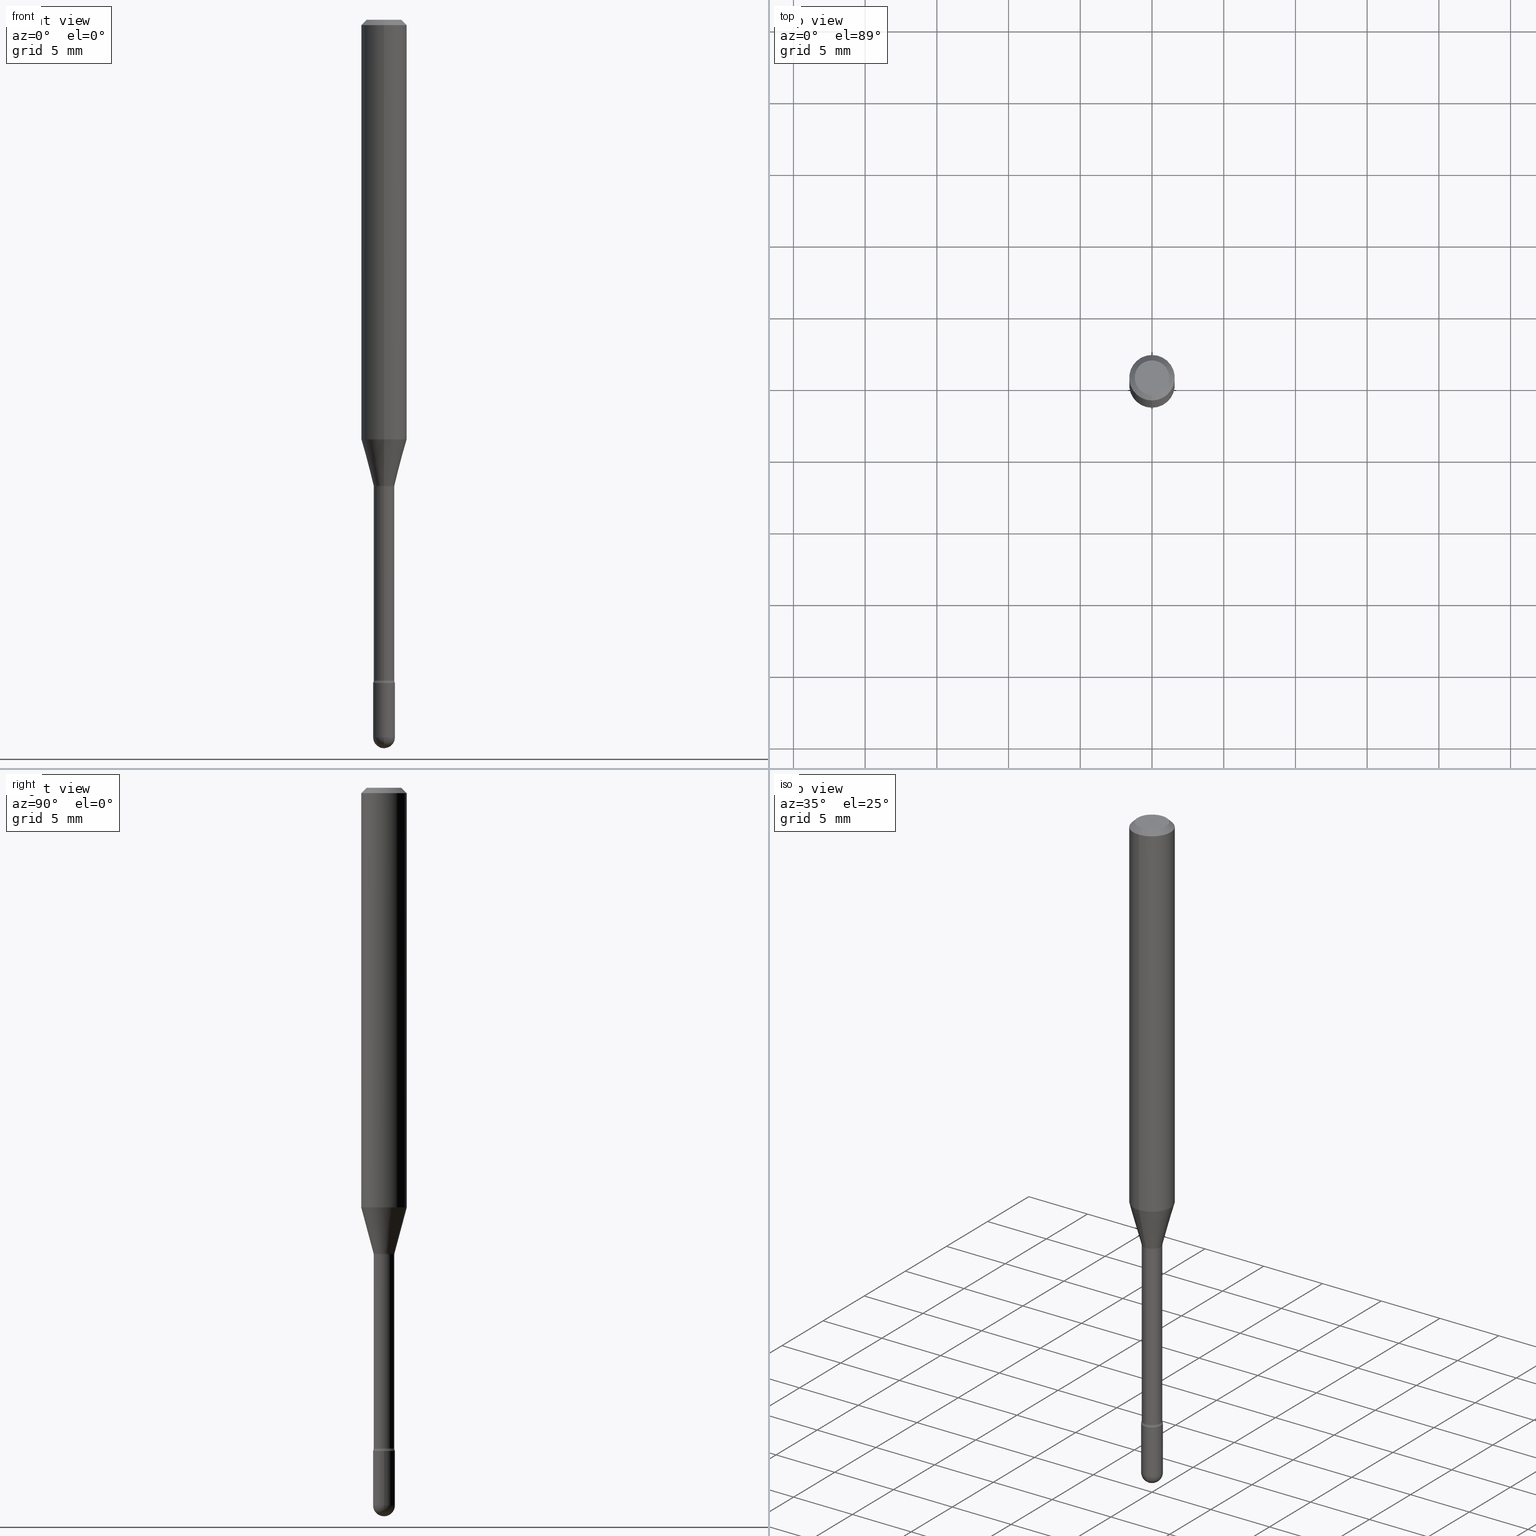
[diagram: canonical four-view strip — front | top / right | iso, engineering-drawing reading convention]
A machine part, canonical four-view strip (front | top / right | iso — engineering-drawing reading convention). The complete STEP part file that produces these views, byte-faithful:
ISO-10303-21;
HEADER;
FILE_DESCRIPTION (( 'STEP AP203' ),
    '1' );
FILE_NAME ('03736.STEP',
    '2024-04-09T20:17:51',
    ( '' ),
    ( '' ),
    'SwSTEP 2.0',
    'SolidWorks 2023',
    '' );
FILE_SCHEMA (( 'CONFIG_CONTROL_DESIGN' ));
ENDSEC;

DATA;
#1 = CARTESIAN_POINT ( 'NONE',  ( 3.840629472727447874E-16, 0.04749999999999999362, -2.485923956665947374E-16 ) ) ;
#2 = PERSON_AND_ORGANIZATION ( #566, #307 ) ;
#3 = CARTESIAN_POINT ( 'NONE',  ( -1.969195475107212711E-16, -0.02820000000000447149, -1.281974787463810994 ) ) ;
#4 = ORIENTED_EDGE ( 'NONE', *, *, #437, .T. ) ;
#5 = VECTOR ( 'NONE', #502, 39.37007874015748143 ) ;
#6 = LOCAL_TIME ( 16, 17, 51.00000000000000000, #274 ) ;
#7 = APPLICATION_PROTOCOL_DEFINITION ( 'international standard', 'config_control_design', 1994, #412 ) ;
#8 = DIRECTION ( 'NONE',  ( -1.000000000000000000, 6.982962677686265922E-15, -4.883557194083112340E-29 ) ) ;
#9 = CARTESIAN_POINT ( 'NONE',  ( 3.135014544081346677E-29, -4.476012254595563164E-15, -1.281974787463810994 ) ) ;
#10 = DIRECTION ( 'NONE',  ( -6.982962677686265922E-15, -1.000000000000000000, 3.491497881522818692E-15 ) ) ;
#11 = ADVANCED_FACE ( 'NONE', ( #523 ), #106, .F. ) ;
#12 = CARTESIAN_POINT ( 'NONE',  ( 4.450753227256948741E-29, -6.354496036694524637E-15, -1.820000000000000062 ) ) ;
#13 = CIRCLE ( 'NONE', #343, 0.01500000000000002720 ) ;
#14 = CARTESIAN_POINT ( 'NONE',  ( -0.03000000000000000583, 2.131628207280300972E-16, -1.475680527076471882E-30 ) ) ;
#15 = EDGE_LOOP ( 'NONE', ( #388, #277, #153, #135 ) ) ;
#16 = DIRECTION ( 'NONE',  ( -6.982962677686266711E-15, -1.000000000000000000, 3.491497881522819481E-15 ) ) ;
#17 = EDGE_LOOP ( 'NONE', ( #70, #458, #284, #471 ) ) ;
#18 = ADVANCED_BREP_SHAPE_REPRESENTATION ( '03736', ( #316, #319, #521 ), #317 ) ;
#19 = DIRECTION ( 'NONE',  ( -1.807323732225328562E-15, -0.2588190451025179639, 0.9659258262890690894 ) ) ;
#20 = ORIENTED_EDGE ( 'NONE', *, *, #321, .F. ) ;
#21 = DIRECTION ( 'NONE',  ( 1.000000000000000000, -6.982962677686265922E-15, 4.883557194083112340E-29 ) ) ;
#22 = CIRCLE ( 'NONE', #84, 0.02999999999999999889 ) ;
#23 = ORIENTED_EDGE ( 'NONE', *, *, #116, .F. ) ;
#24 = DIRECTION ( 'NONE',  ( -2.445457254493661418E-29, 3.491497881522819481E-15, 1.000000000000000000 ) ) ;
#25 = ORIENTED_EDGE ( 'NONE', *, *, #565, .T. ) ;
#26 = EDGE_CURVE ( 'NONE', #104, #322, #432, .T. ) ;
#27 = DIRECTION ( 'NONE',  ( -6.982962677686266711E-15, -1.000000000000000000, 0.000000000000000000 ) ) ;
#28 = ORIENTED_EDGE ( 'NONE', *, *, #532, .T. ) ;
#29 = CARTESIAN_POINT ( 'NONE',  ( 2.094888803306360922E-16, 0.02999999999999311551, -1.969999999999999973 ) ) ;
#30 = ORIENTED_EDGE ( 'NONE', *, *, #63, .T. ) ;
#31 = CIRCLE ( 'NONE', #121, 0.02820000000000008958 ) ;
#32 = AXIS2_PLACEMENT_3D ( 'NONE', #9, #220, #213 ) ;
#33 = ADVANCED_FACE ( 'NONE', ( #74 ), #120, .T. ) ;
#34 = CARTESIAN_POINT ( 'NONE',  ( 4.450753227256948741E-29, -6.354496036694524637E-15, -1.820000000000000062 ) ) ;
#35 = ORIENTED_EDGE ( 'NONE', *, *, #116, .T. ) ;
#36 = CLOSED_SHELL ( 'NONE', ( #187, #126, #33, #234, #354 ) ) ;
#37 = DIRECTION ( 'NONE',  ( -6.982962677686265133E-15, -1.000000000000000000, 3.491497881522818297E-15 ) ) ;
#38 = CC_DESIGN_PERSON_AND_ORGANIZATION_ASSIGNMENT ( #526, #89, ( #406 ) ) ;
#39 = ORIENTED_EDGE ( 'NONE', *, *, #45, .F. ) ;
#40 = DIRECTION ( 'NONE',  ( 1.000000000000000000, -7.105427357601001070E-15, 4.926315711131479445E-29 ) ) ;
#41 = ORIENTED_EDGE ( 'NONE', *, *, #399, .F. ) ;
#42 = AXIS2_PLACEMENT_3D ( 'NONE', #142, #87, #266 ) ;
#43 = PERSON_AND_ORGANIZATION_ROLE ( 'classification_officer' ) ;
#44 = CARTESIAN_POINT ( 'NONE',  ( -3.773273898774340269E-16, -0.04749999999999999362, 8.309990307807305803E-17 ) ) ;
#45 = EDGE_CURVE ( 'NONE', #384, #107, #211, .T. ) ;
#46 = CYLINDRICAL_SURFACE ( 'NONE', #262, 0.06250000000000000000 ) ;
#47 = EDGE_LOOP ( 'NONE', ( #30, #424, #155, #218, #241 ) ) ;
#48 = PERSON_AND_ORGANIZATION_ROLE ( 'creator' ) ;
#49 = DIRECTION ( 'NONE',  ( -2.445468806185136597E-29, 3.491481338843145583E-15, 1.000000000000000000 ) ) ;
#50 = CONICAL_SURFACE ( 'NONE', #379, 0.02871111260566397427, 0.2617993877991500740 ) ;
#51 = TOROIDAL_SURFACE ( 'NONE', #380, 0.04320000000000000229, 0.01500000000000003067 ) ;
#52 = COORDINATED_UNIVERSAL_TIME_OFFSET ( 5, 0, .BEHIND. ) ;
#53 = EDGE_CURVE ( 'NONE', #333, #104, #298, .T. ) ;
#54 = DIRECTION ( 'NONE',  ( -2.445468806185136597E-29, 3.491481338843145583E-15, 1.000000000000000000 ) ) ;
#55 = CYLINDRICAL_SURFACE ( 'NONE', #400, 0.03000000000000000583 ) ;
#56 = DATE_TIME_ROLE ( 'classification_date' ) ;
#57 = DIRECTION ( 'NONE',  ( 1.000000000000000000, -6.982962677686266711E-15, 0.000000000000000000 ) ) ;
#58 = CONICAL_SURFACE ( 'NONE', #280, 0.06250000000000000000, 0.7853981633974483900 ) ;
#59 = CC_DESIGN_APPROVAL ( #299, ( #131 ) ) ;
#60 = CARTESIAN_POINT ( 'NONE',  ( 4.817573548184719118E-29, -6.878218237520997007E-15, -1.969999999999999973 ) ) ;
#61 = ORIENTED_EDGE ( 'NONE', *, *, #348, .F. ) ;
#62 = ADVANCED_FACE ( 'NONE', ( #484 ), #93, .T. ) ;
#63 = EDGE_CURVE ( 'NONE', #473, #151, #500, .T. ) ;
#64 = CARTESIAN_POINT ( 'NONE',  ( -0.02999999999999999889, -6.403194316379730971E-15, -1.820000000000000062 ) ) ;
#65 = ORIENTED_EDGE ( 'NONE', *, *, #393, .T. ) ;
#66 = LINE ( 'NONE', #143, #287 ) ;
#67 = ORIENTED_EDGE ( 'NONE', *, *, #26, .T. ) ;
#68 = DIRECTION ( 'NONE',  ( -6.982962677686266711E-15, -1.000000000000000000, 0.000000000000000000 ) ) ;
#69 = EDGE_CURVE ( 'NONE', #76, #236, #22, .T. ) ;
#70 = ORIENTED_EDGE ( 'NONE', *, *, #504, .F. ) ;
#71 = CIRCLE ( 'NONE', #288, 0.06250000000000000000 ) ;
#72 = CARTESIAN_POINT ( 'NONE',  ( 3.135029353058570194E-29, -4.475991047297303565E-15, -1.281974787463810994 ) ) ;
#73 = VERTEX_POINT ( 'NONE', #44 ) ;
#74 = FACE_OUTER_BOUND ( 'NONE', #501, .T. ) ;
#75 = DIRECTION ( 'NONE',  ( -2.445457254493661418E-29, 3.491497881522819481E-15, 1.000000000000000000 ) ) ;
#76 = VERTEX_POINT ( 'NONE', #493 ) ;
#77 = VECTOR ( 'NONE', #445, 39.37007874015748143 ) ;
#78 = AXIS2_PLACEMENT_3D ( 'NONE', #423, #160, #37 ) ;
#79 = FACE_OUTER_BOUND ( 'NONE', #83, .T. ) ;
#80 = ORIENTED_EDGE ( 'NONE', *, *, #53, .T. ) ;
#81 = DIRECTION ( 'NONE',  ( 6.982962677686265922E-15, 1.000000000000000000, -3.491497881522819086E-15 ) ) ;
#82 = DIRECTION ( 'NONE',  ( 1.000000000000000000, -6.982962677686265922E-15, 4.876176775795935793E-29 ) ) ;
#83 = EDGE_LOOP ( 'NONE', ( #548, #392, #398, #291 ) ) ;
#84 = AXIS2_PLACEMENT_3D ( 'NONE', #12, #54, #225 ) ;
#85 = AXIS2_PLACEMENT_3D ( 'NONE', #294, #111, #475 ) ;
#86 = COORDINATED_UNIVERSAL_TIME_OFFSET ( 5, 0, .BEHIND. ) ;
#87 = DIRECTION ( 'NONE',  ( -2.445457254493661418E-29, 3.491497881522819481E-15, 1.000000000000000000 ) ) ;
#88 = VERTEX_POINT ( 'NONE', #528 ) ;
#89 = PERSON_AND_ORGANIZATION_ROLE ( 'creator' ) ;
#90 = CARTESIAN_POINT ( 'NONE',  ( 4.817573548184719118E-29, -6.878218237520997007E-15, -1.969999999999999973 ) ) ;
#91 = MECHANICAL_CONTEXT ( 'NONE', #412, 'mechanical' ) ;
#92 = DIRECTION ( 'NONE',  ( -2.445457254493661418E-29, 3.491497881522819481E-15, 1.000000000000000000 ) ) ;
#93 = CONICAL_SURFACE ( 'NONE', #447, 0.06250000000000000000, 0.7853981633974483900 ) ;
#94 = CC_DESIGN_PERSON_AND_ORGANIZATION_ASSIGNMENT ( #2, #43, ( #546 ) ) ;
#95 = DATE_AND_TIME ( #491, #391 ) ;
#96 = CARTESIAN_POINT ( 'NONE',  ( -1.169113584055446105E-44, 1.669184350826100908E-30, 4.780733988912460139E-16 ) ) ;
#97 = COORDINATED_UNIVERSAL_TIME_OFFSET ( 5, 0, .BEHIND. ) ;
#98 = CARTESIAN_POINT ( 'NONE',  ( 2.003730514843928186E-16, 0.02819999999999552032, -1.281974787463810994 ) ) ;
#99 = SPHERICAL_SURFACE ( 'NONE', #457, 0.02999999999999997807 ) ;
#100 = ADVANCED_FACE ( 'NONE', ( #318 ), #46, .T. ) ;
#101 = ORIENTED_EDGE ( 'NONE', *, *, #312, .T. ) ;
#102 = AXIS2_PLACEMENT_3D ( 'NONE', #206, #40, #124 ) ;
#103 = DIRECTION ( 'NONE',  ( -2.445468806185136877E-29, 3.491481338843145188E-15, 1.000000000000000000 ) ) ;
#104 = VERTEX_POINT ( 'NONE', #129 ) ;
#105 = LINE ( 'NONE', #14, #253 ) ;
#106 = TOROIDAL_SURFACE ( 'NONE', #407, 0.04320000000000006474, 0.01499999999999997689 ) ;
#107 = VERTEX_POINT ( 'NONE', #3 ) ;
#108 = DIRECTION ( 'NONE',  ( -7.105427357601001070E-15, -1.000000000000000000, 0.000000000000000000 ) ) ;
#109 = ORIENTED_EDGE ( 'NONE', *, *, #519, .F. ) ;
#110 = AXIS2_PLACEMENT_3D ( 'NONE', #499, #383, #426 ) ;
#111 = DIRECTION ( 'NONE',  ( -2.445457254493661418E-29, 3.491497881522819481E-15, 1.000000000000000000 ) ) ;
#112 = CC_DESIGN_APPROVAL ( #122, ( #546 ) ) ;
#113 = ORIENTED_EDGE ( 'NONE', *, *, #252, .T. ) ;
#114 = DIRECTION ( 'NONE',  ( -2.445468806185136597E-29, 3.491481338843145583E-15, 1.000000000000000000 ) ) ;
#115 = ORIENTED_EDGE ( 'NONE', *, *, #513, .T. ) ;
#116 = EDGE_CURVE ( 'NONE', #325, #333, #201, .T. ) ;
#117 = DIRECTION ( 'NONE',  ( -6.982962677686266711E-15, -1.000000000000000000, 3.491497881522819481E-15 ) ) ;
#118 = ORIENTED_EDGE ( 'NONE', *, *, #290, .F. ) ;
#119 = DIRECTION ( 'NONE',  ( -2.445457254493661418E-29, 3.491497881522819481E-15, 1.000000000000000000 ) ) ;
#120 = PLANE ( 'NONE',  #171 ) ;
#121 = AXIS2_PLACEMENT_3D ( 'NONE', #278, #371, #68 ) ;
#122 = APPROVAL ( #495, 'UNSPECIFIED' ) ;
#123 = AXIS2_PLACEMENT_3D ( 'NONE', #508, #256, #81 ) ;
#124 = DIRECTION ( 'NONE',  ( 7.105427357601001859E-15, 1.000000000000000000, 0.000000000000000000 ) ) ;
#125 = ORIENTED_EDGE ( 'NONE', *, *, #240, .F. ) ;
#126 = ADVANCED_FACE ( 'NONE', ( #357 ), #451, .T. ) ;
#127 = CALENDAR_DATE ( 2024, 9, 4 ) ;
#128 = DIRECTION ( 'NONE',  ( -6.982962677686265922E-15, -1.000000000000000000, 4.370956789862821150E-15 ) ) ;
#129 = CARTESIAN_POINT ( 'NONE',  ( 4.440892098500904235E-16, 0.06249999999999594075, -1.151990657300388188 ) ) ;
#130 = CIRCLE ( 'NONE', #166, 0.01499999999999997689 ) ;
#131 = PRODUCT_DEFINITION_FORMATION_WITH_SPECIFIED_SOURCE ( 'ANY', '', #232, .NOT_KNOWN. ) ;
#132 = CALENDAR_DATE ( 2024, 9, 4 ) ;
#133 = DIRECTION ( 'NONE',  ( -1.000000000000000000, 6.982962677686265922E-15, -4.883557194083112340E-29 ) ) ;
#134 = DIRECTION ( 'NONE',  ( -2.445457254493661418E-29, 3.491497881522819086E-15, 1.000000000000000000 ) ) ;
#135 = ORIENTED_EDGE ( 'NONE', *, *, #168, .F. ) ;
#136 = CC_DESIGN_PERSON_AND_ORGANIZATION_ASSIGNMENT ( #216, #227, ( #232 ) ) ;
#137 = APPROVAL_STATUS ( 'not_yet_approved' ) ;
#138 = DIRECTION ( 'NONE',  ( 6.982962677686265922E-15, 1.000000000000000000, 0.000000000000000000 ) ) ;
#139 = TOROIDAL_SURFACE ( 'NONE', #468, 0.04320000000000000229, 0.01500000000000003067 ) ;
#140 = CC_DESIGN_APPROVAL ( #429, ( #406 ) ) ;
#141 = APPROVAL_DATE_TIME ( #410, #122 ) ;
#142 = CARTESIAN_POINT ( 'NONE',  ( 3.125520580409640531E-29, -4.462457262380464341E-15, -1.278092501787273072 ) ) ;
#143 = CARTESIAN_POINT ( 'NONE',  ( -2.004886277601679343E-16, -0.02871111260566843598, -1.278092501787273072 ) ) ;
#144 = VERTEX_POINT ( 'NONE', #536 ) ;
#145 = DIRECTION ( 'NONE',  ( 1.000000000000000000, -6.982962677686266711E-15, 4.876176775795935793E-29 ) ) ;
#146 = VERTEX_POINT ( 'NONE', #1 ) ;
#147 = EDGE_CURVE ( 'NONE', #382, #473, #492, .T. ) ;
#148 = AXIS2_PLACEMENT_3D ( 'NONE', #490, #92, #271 ) ;
#149 = CIRCLE ( 'NONE', #413, 0.03000000000000000583 ) ;
#150 = FACE_OUTER_BOUND ( 'NONE', #17, .T. ) ;
#151 = VERTEX_POINT ( 'NONE', #268 ) ;
#152 = FACE_OUTER_BOUND ( 'NONE', #293, .T. ) ;
#153 = ORIENTED_EDGE ( 'NONE', *, *, #513, .F. ) ;
#154 = CARTESIAN_POINT ( 'NONE',  ( 3.125520580409640531E-29, -4.462457262380464341E-15, -1.278092501787273072 ) ) ;
#155 = ORIENTED_EDGE ( 'NONE', *, *, #69, .F. ) ;
#156 = AXIS2_PLACEMENT_3D ( 'NONE', #90, #214, #178 ) ;
#157 = DIRECTION ( 'NONE',  ( -2.445468806185136877E-29, 3.491481338843145188E-15, 1.000000000000000000 ) ) ;
#158 = CIRCLE ( 'NONE', #32, 0.02819999999999999243 ) ;
#159 = EDGE_LOOP ( 'NONE', ( #360, #503, #25, #542 ) ) ;
#160 = DIRECTION ( 'NONE',  ( -2.445457254493661418E-29, 3.491497881522819481E-15, 1.000000000000000000 ) ) ;
#161 = ADVANCED_FACE ( 'NONE', ( #175 ), #397, .T. ) ;
#162 = EDGE_LOOP ( 'NONE', ( #170, #23, #368, #339 ) ) ;
#163 = DIRECTION ( 'NONE',  ( -6.982962677686266711E-15, -1.000000000000000000, 3.491497881522819481E-15 ) ) ;
#164 = ORIENTED_EDGE ( 'NONE', *, *, #252, .F. ) ;
#165 = LINE ( 'NONE', #472, #167 ) ;
#166 = AXIS2_PLACEMENT_3D ( 'NONE', #448, #489, #306 ) ;
#167 = VECTOR ( 'NONE', #344, 39.37007874015748143 ) ;
#168 = EDGE_CURVE ( 'NONE', #322, #144, #530, .T. ) ;
#169 = DIRECTION ( 'NONE',  ( -4.851104656540964275E-15, -0.7071067811865500152, -0.7071067811865450192 ) ) ;
#170 = ORIENTED_EDGE ( 'NONE', *, *, #460, .F. ) ;
#171 = AXIS2_PLACEMENT_3D ( 'NONE', #301, #295, #82 ) ;
#172 = DIRECTION ( 'NONE',  ( 1.000000000000000000, -6.982962677686266711E-15, 4.876176775795935793E-29 ) ) ;
#173 = COORDINATED_UNIVERSAL_TIME_OFFSET ( 5, 0, .BEHIND. ) ;
#174 = EDGE_CURVE ( 'NONE', #325, #107, #13, .T. ) ;
#175 = FACE_OUTER_BOUND ( 'NONE', #15, .T. ) ;
#176 = CIRCLE ( 'NONE', #192, 0.02999999999999999889 ) ;
#177 = AXIS2_PLACEMENT_3D ( 'NONE', #381, #119, #27 ) ;
#178 = DIRECTION ( 'NONE',  ( 1.000000000000000000, -6.982962677686266711E-15, 0.000000000000000000 ) ) ;
#179 =( LENGTH_UNIT ( ) NAMED_UNIT ( * ) SI_UNIT ( $, .METRE. ) );
#180 = CARTESIAN_POINT ( 'NONE',  ( 3.125520580409640531E-29, -4.462457262380464341E-15, -1.278092501787273072 ) ) ;
#181 = APPROVAL_ROLE ( '' ) ;
#182 = CARTESIAN_POINT ( 'NONE',  ( -4.364351673553916201E-16, -0.06250000000000000000, 6.962920164864222561E-16 ) ) ;
#183 = CIRCLE ( 'NONE', #510, 0.06250000000000000000 ) ;
#184 = EDGE_CURVE ( 'NONE', #384, #476, #130, .T. ) ;
#185 = CARTESIAN_POINT ( 'NONE',  ( -4.364351673553636648E-16, -0.06250000000000405231, -1.151990657300387522 ) ) ;
#186 = ORIENTED_EDGE ( 'NONE', *, *, #69, .T. ) ;
#187 = ADVANCED_FACE ( 'NONE', ( #313 ), #55, .T. ) ;
#188 = DIRECTION ( 'NONE',  ( -1.000000000000000000, 7.105427357601001070E-15, -4.926315508542082329E-29 ) ) ;
#189 = EDGE_LOOP ( 'NONE', ( #35, #80, #279, #61 ) ) ;
#190 = CYLINDRICAL_SURFACE ( 'NONE', #520, 0.03000000000000000583 ) ;
#191 = ORIENTED_EDGE ( 'NONE', *, *, #555, .T. ) ;
#192 = AXIS2_PLACEMENT_3D ( 'NONE', #456, #374, #549 ) ;
#193 = LOCAL_TIME ( 16, 17, 51.00000000000000000, #97 ) ;
#194 = CARTESIAN_POINT ( 'NONE',  ( -1.969195475107089945E-16, -0.02820000000000642132, -1.812875394747777591 ) ) ;
#195 = ORIENTED_EDGE ( 'NONE', *, *, #480, .T. ) ;
#196 = DIRECTION ( 'NONE',  ( -1.000000000000000000, 6.982962677686265922E-15, -4.883557194083112340E-29 ) ) ;
#197 = ORIENTED_EDGE ( 'NONE', *, *, #255, .T. ) ;
#198 = EDGE_CURVE ( 'NONE', #322, #104, #243, .T. ) ;
#199 = DIRECTION ( 'NONE',  ( -2.445457254493661418E-29, 3.491497881522819481E-15, 1.000000000000000000 ) ) ;
#200 = ORIENTED_EDGE ( 'NONE', *, *, #219, .T. ) ;
#201 = CIRCLE ( 'NONE', #326, 0.02871111260566397427 ) ;
#202 = DIRECTION ( 'NONE',  ( -2.445457254493661418E-29, 3.491497881522819481E-15, 1.000000000000000000 ) ) ;
#203 = DIRECTION ( 'NONE',  ( 6.982962677686265922E-15, 1.000000000000000000, -3.483106191921935554E-15 ) ) ;
#204 = CARTESIAN_POINT ( 'NONE',  ( 3.668185881740512253E-31, -5.237246822284258483E-17, -0.01500000000000008271 ) ) ;
#205 = VERTEX_POINT ( 'NONE', #539 ) ;
#206 = CARTESIAN_POINT ( 'NONE',  ( 3.069544618483945552E-16, 0.04319999999999552670, -1.281974787463811216 ) ) ;
#207 = ORIENTED_EDGE ( 'NONE', *, *, #437, .F. ) ;
#208 = ADVANCED_FACE ( 'NONE', ( #228 ), #233, .T. ) ;
#209 = CYLINDRICAL_SURFACE ( 'NONE', #78, 0.02820000000000004101 ) ;
#210 = CIRCLE ( 'NONE', #110, 0.01499999999999997689 ) ;
#211 = LINE ( 'NONE', #254, #267 ) ;
#212 = CC_DESIGN_PERSON_AND_ORGANIZATION_ASSIGNMENT ( #265, #48, ( #131 ) ) ;
#213 = DIRECTION ( 'NONE',  ( -6.982962677686265133E-15, -1.000000000000000000, 0.000000000000000000 ) ) ;
#214 = DIRECTION ( 'NONE',  ( -2.445468806185136597E-29, 3.491481338843145583E-15, 1.000000000000000000 ) ) ;
#215 = ADVANCED_FACE ( 'NONE', ( #221 ), #442, .F. ) ;
#216 = PERSON_AND_ORGANIZATION ( #566, #307 ) ;
#217 = DIRECTION ( 'NONE',  ( -6.982962677686265922E-15, -1.000000000000000000, 0.000000000000000000 ) ) ;
#218 = ORIENTED_EDGE ( 'NONE', *, *, #532, .F. ) ;
#219 = EDGE_CURVE ( 'NONE', #73, #146, #544, .T. ) ;
#220 = DIRECTION ( 'NONE',  ( -2.445457254493661418E-29, 3.491497881522819481E-15, 1.000000000000000000 ) ) ;
#221 = FACE_OUTER_BOUND ( 'NONE', #375, .T. ) ;
#222 = CIRCLE ( 'NONE', #272, 0.02999999999999997807 ) ;
#223 = VECTOR ( 'NONE', #157, 39.37007874015748143 ) ;
#224 = DATE_AND_TIME ( #127, #402 ) ;
#225 = DIRECTION ( 'NONE',  ( 1.000000000000000000, -6.982962677686268288E-15, 0.000000000000000000 ) ) ;
#226 = ADVANCED_FACE ( 'NONE', ( #463 ), #50, .T. ) ;
#227 = PERSON_AND_ORGANIZATION_ROLE ( 'design_owner' ) ;
#228 = FACE_OUTER_BOUND ( 'NONE', #189, .T. ) ;
#229 = UNCERTAINTY_MEASURE_WITH_UNIT (LENGTH_MEASURE( 1.000000000000000082E-05 ), #346, 'distance_accuracy_value', 'NONE');
#230 = CALENDAR_DATE ( 2024, 9, 4 ) ;
#231 = CARTESIAN_POINT ( 'NONE',  ( 4.817573548184719118E-29, -6.878218237520997007E-15, -1.969999999999999973 ) ) ;
#232 = PRODUCT ( '03736', '03736', '', ( #91 ) ) ;
#233 = CONICAL_SURFACE ( 'NONE', #42, 0.02871111260566397427, 0.2617993877991500740 ) ;
#234 = ADVANCED_FACE ( 'NONE', ( #152 ), #99, .T. ) ;
#235 = CARTESIAN_POINT ( 'NONE',  ( 2.023468857260129839E-45, -2.889162522554755982E-31, -8.274624629426083968E-17 ) ) ;
#236 = VERTEX_POINT ( 'NONE', #64 ) ;
#237 = CARTESIAN_POINT ( 'NONE',  ( -2.004886277601679343E-16, -0.02871111260566843598, -1.278092501787273072 ) ) ;
#238 = ORIENTED_EDGE ( 'NONE', *, *, #26, .F. ) ;
#239 = CARTESIAN_POINT ( 'NONE',  ( 0.000000000000000000, 0.000000000000000000, 0.000000000000000000 ) ) ;
#240 = EDGE_CURVE ( 'NONE', #205, #464, #529, .T. ) ;
#241 = ORIENTED_EDGE ( 'NONE', *, *, #147, .T. ) ;
#242 = APPLICATION_CONTEXT ( 'configuration controlled 3d designs of mechanical parts and assemblies' ) ;
#243 = CIRCLE ( 'NONE', #553, 0.06250000000000000000 ) ;
#244 = VECTOR ( 'NONE', #169, 39.37007874015748143 ) ;
#245 = DIRECTION ( 'NONE',  ( -2.445468806185136597E-29, 3.491481338843145583E-15, 1.000000000000000000 ) ) ;
#246 = ORIENTED_EDGE ( 'NONE', *, *, #53, .F. ) ;
#247 = DIRECTION ( 'NONE',  ( -2.445457254493661418E-29, 3.491497881522819481E-15, 1.000000000000000000 ) ) ;
#248 = VERTEX_POINT ( 'NONE', #98 ) ;
#249 = ADVANCED_FACE ( 'NONE', ( #150 ), #58, .T. ) ;
#250 = CARTESIAN_POINT ( 'NONE',  ( 4.433330227356255357E-29, -6.329620610409766284E-15, -1.812875394747777591 ) ) ;
#251 = DIRECTION ( 'NONE',  ( 1.839019923739598738E-15, 0.2588190451025247363, 0.9659258262890673130 ) ) ;
#252 = EDGE_CURVE ( 'NONE', #422, #384, #31, .T. ) ;
#253 = VECTOR ( 'NONE', #103, 39.37007874015748143 ) ;
#254 = CARTESIAN_POINT ( 'NONE',  ( -1.969195475107529735E-16, -0.02820000000000004101, 5.765336391501896876E-16 ) ) ;
#255 = EDGE_CURVE ( 'NONE', #558, #476, #176, .T. ) ;
#256 = DIRECTION ( 'NONE',  ( 2.445457254493661418E-29, -3.491497881522819086E-15, -1.000000000000000000 ) ) ;
#257 = ORIENTED_EDGE ( 'NONE', *, *, #348, .T. ) ;
#258 = AXIS2_PLACEMENT_3D ( 'NONE', #431, #427, #128 ) ;
#259 = DIRECTION ( 'NONE',  ( -2.445457254493661418E-29, 3.491497881522819481E-15, 1.000000000000000000 ) ) ;
#260 = DIRECTION ( 'NONE',  ( 2.445457254493661418E-29, -3.491497881522819481E-15, -1.000000000000000000 ) ) ;
#261 = APPROVAL_DATE_TIME ( #224, #299 ) ;
#262 = AXIS2_PLACEMENT_3D ( 'NONE', #534, #404, #10 ) ;
#263 = DIRECTION ( 'NONE',  ( -6.982962677686265922E-15, -1.000000000000000000, 3.491497881522818692E-15 ) ) ;
#264 = LOCAL_TIME ( 16, 17, 51.00000000000000000, #173 ) ;
#265 = PERSON_AND_ORGANIZATION ( #566, #307 ) ;
#266 = DIRECTION ( 'NONE',  ( -6.982962677686265922E-15, -1.000000000000000000, 0.000000000000000000 ) ) ;
#267 = VECTOR ( 'NONE', #347, 39.37007874015748143 ) ;
#268 = CARTESIAN_POINT ( 'NONE',  ( -0.03000000000000000583, -6.403194316379730971E-15, -1.969999999999999973 ) ) ;
#269 = EDGE_CURVE ( 'NONE', #333, #325, #315, .T. ) ;
#270 = APPROVAL_STATUS ( 'not_yet_approved' ) ;
#271 = DIRECTION ( 'NONE',  ( -6.982962677686266711E-15, -1.000000000000000000, 3.491497881522819481E-15 ) ) ;
#272 = AXIS2_PLACEMENT_3D ( 'NONE', #60, #21, #323 ) ;
#273 = CC_DESIGN_SECURITY_CLASSIFICATION ( #546, ( #131 ) ) ;
#274 = COORDINATED_UNIVERSAL_TIME_OFFSET ( 5, 0, .BEHIND. ) ;
#275 = CARTESIAN_POINT ( 'NONE',  ( 4.817573548184719118E-29, -6.878218237520997007E-15, -1.969999999999999973 ) ) ;
#276 = DIRECTION ( 'NONE',  ( -2.445457254493661418E-29, 3.491497881522819481E-15, 1.000000000000000000 ) ) ;
#277 = ORIENTED_EDGE ( 'NONE', *, *, #321, .T. ) ;
#278 = CARTESIAN_POINT ( 'NONE',  ( 4.433309285579012941E-29, -6.329650600226710445E-15, -1.812875394747777591 ) ) ;
#279 = ORIENTED_EDGE ( 'NONE', *, *, #198, .F. ) ;
#280 = AXIS2_PLACEMENT_3D ( 'NONE', #421, #285, #332 ) ;
#281 = DIRECTION ( 'NONE',  ( -6.982962677686265922E-15, -1.000000000000000000, 0.000000000000000000 ) ) ;
#282 = ORIENTED_EDGE ( 'NONE', *, *, #45, .T. ) ;
#283 = DIRECTION ( 'NONE',  ( 4.937700262164548042E-15, 0.7071067811865451302, -0.7071067811865499042 ) ) ;
#284 = ORIENTED_EDGE ( 'NONE', *, *, #303, .T. ) ;
#285 = DIRECTION ( 'NONE',  ( 2.445457254493661418E-29, -3.491497881522819481E-15, -1.000000000000000000 ) ) ;
#286 = ORIENTED_EDGE ( 'NONE', *, *, #240, .T. ) ;
#287 = VECTOR ( 'NONE', #19, 39.37007874015748854 ) ;
#288 = AXIS2_PLACEMENT_3D ( 'NONE', #204, #199, #554 ) ;
#289 = FACE_OUTER_BOUND ( 'NONE', #162, .T. ) ;
#290 = EDGE_CURVE ( 'NONE', #151, #236, #105, .T. ) ;
#291 = ORIENTED_EDGE ( 'NONE', *, *, #474, .T. ) ;
#292 = CARTESIAN_POINT ( 'NONE',  ( 3.668185881740512253E-31, -5.237246822284258483E-17, -0.01500000000000008271 ) ) ;
#293 = EDGE_LOOP ( 'NONE', ( #125, #366, #419, #518 ) ) ;
#294 = CARTESIAN_POINT ( 'NONE',  ( -1.169113584055446105E-44, 1.669184350826100908E-30, 4.780733988912460139E-16 ) ) ;
#295 = DIRECTION ( 'NONE',  ( -2.438088387897960049E-29, 3.491481338843145188E-15, 1.000000000000000000 ) ) ;
#296 = DIRECTION ( 'NONE',  ( -6.982962677686265133E-15, -1.000000000000000000, 0.000000000000000000 ) ) ;
#297 = CIRCLE ( 'NONE', #361, 0.02999999999999999889 ) ;
#298 = LINE ( 'NONE', #525, #341 ) ;
#299 = APPROVAL ( #270, 'UNSPECIFIED' ) ;
#300 = FACE_OUTER_BOUND ( 'NONE', #415, .T. ) ;
#301 = CARTESIAN_POINT ( 'NONE',  ( 4.450753227256948741E-29, -6.354496036694524637E-15, -1.820000000000000062 ) ) ;
#302 = CARTESIAN_POINT ( 'NONE',  ( 2.131628207280743720E-16, 0.02999999999999362899, -1.820000000000000284 ) ) ;
#303 = EDGE_CURVE ( 'NONE', #146, #88, #547, .T. ) ;
#304 = CARTESIAN_POINT ( 'NONE',  ( 3.668185881740512253E-31, -5.237246822284258483E-17, -0.01500000000000008271 ) ) ;
#305 = AXIS2_PLACEMENT_3D ( 'NONE', #479, #436, #350 ) ;
#306 = DIRECTION ( 'NONE',  ( -6.982962677686266711E-15, -1.000000000000000000, 0.000000000000000000 ) ) ;
#307 = ORGANIZATION ( 'UNSPECIFIED', 'UNSPECIFIED', '' ) ;
#308 = SECURITY_CLASSIFICATION_LEVEL ( 'unclassified' ) ;
#309 = CARTESIAN_POINT ( 'NONE',  ( 0.000000000000000000, 0.000000000000000000, 0.000000000000000000 ) ) ;
#310 = DIRECTION ( 'NONE',  ( 1.000000000000000000, 0.000000000000000000, 0.000000000000000000 ) ) ;
#311 = DIRECTION ( 'NONE',  ( -6.982962677686265922E-15, -1.000000000000000000, 3.491497881522819086E-15 ) ) ;
#312 = EDGE_CURVE ( 'NONE', #464, #382, #438, .T. ) ;
#313 = FACE_OUTER_BOUND ( 'NONE', #47, .T. ) ;
#314 = AXIS2_PLACEMENT_3D ( 'NONE', #466, #245, #57 ) ;
#315 = CIRCLE ( 'NONE', #352, 0.02871111260566397427 ) ;
#316 = MANIFOLD_SOLID_BREP ( 'Body-Move/Copy2[1]', #36 ) ;
#317 =( GEOMETRIC_REPRESENTATION_CONTEXT ( 3 ) GLOBAL_UNCERTAINTY_ASSIGNED_CONTEXT ( ( #229 ) ) GLOBAL_UNIT_ASSIGNED_CONTEXT ( ( #346, #441, #535 ) ) REPRESENTATION_CONTEXT ( 'NONE', 'WORKASPACE' ) );
#318 = FACE_OUTER_BOUND ( 'NONE', #514, .T. ) ;
#319 = MANIFOLD_SOLID_BREP ( 'Body-Move/Copy2[2]', #356 ) ;
#320 = FACE_OUTER_BOUND ( 'NONE', #337, .T. ) ;
#321 = EDGE_CURVE ( 'NONE', #104, #88, #363, .T. ) ;
#322 = VERTEX_POINT ( 'NONE', #185 ) ;
#323 = DIRECTION ( 'NONE',  ( 6.982962677686265922E-15, 1.000000000000000000, 0.000000000000000000 ) ) ;
#324 = PRODUCT_DEFINITION_SHAPE ( 'NONE', 'NONE',  #406 ) ;
#325 = VERTEX_POINT ( 'NONE', #237 ) ;
#326 = AXIS2_PLACEMENT_3D ( 'NONE', #180, #440, #217 ) ;
#327 = AXIS2_PLACEMENT_3D ( 'NONE', #517, #202, #435 ) ;
#328 = DIRECTION ( 'NONE',  ( -6.982962677686265922E-15, -1.000000000000000000, 0.000000000000000000 ) ) ;
#329 = ORIENTED_EDGE ( 'NONE', *, *, #255, .F. ) ;
#330 = CARTESIAN_POINT ( 'NONE',  ( 3.125520580409640531E-29, -4.462457262380464341E-15, -1.278092501787273072 ) ) ;
#331 = ORIENTED_EDGE ( 'NONE', *, *, #474, .F. ) ;
#332 = DIRECTION ( 'NONE',  ( 6.982962677686265922E-15, 1.000000000000000000, -3.483106191921935554E-15 ) ) ;
#333 = VERTEX_POINT ( 'NONE', #540 ) ;
#334 = AXIS2_PLACEMENT_3D ( 'NONE', #401, #134, #311 ) ;
#335 = CIRCLE ( 'NONE', #177, 0.02820000000000008958 ) ;
#336 = CARTESIAN_POINT ( 'NONE',  ( 4.817573548184719118E-29, -6.878218237520997007E-15, -1.969999999999999973 ) ) ;
#337 = EDGE_LOOP ( 'NONE', ( #118, #191, #101, #28, #109 ) ) ;
#338 = FACE_OUTER_BOUND ( 'NONE', #467, .T. ) ;
#339 = ORIENTED_EDGE ( 'NONE', *, *, #425, .T. ) ;
#340 = CARTESIAN_POINT ( 'NONE',  ( -2.131628207279818041E-16, -0.03000000000000686839, -1.969999999999999973 ) ) ;
#341 = VECTOR ( 'NONE', #251, 39.37007874015748854 ) ;
#342 = ORIENTED_EDGE ( 'NONE', *, *, #373, .T. ) ;
#343 = AXIS2_PLACEMENT_3D ( 'NONE', #359, #133, #395 ) ;
#344 = DIRECTION ( 'NONE',  ( -2.445457254493661698E-29, 3.491497881522819086E-15, 1.000000000000000000 ) ) ;
#345 = ORIENTED_EDGE ( 'NONE', *, *, #519, .T. ) ;
#346 =( CONVERSION_BASED_UNIT ( 'INCH', #351 ) LENGTH_UNIT ( ) NAMED_UNIT ( #376 ) );
#347 = DIRECTION ( 'NONE',  ( -2.445457254493661698E-29, 3.491497881522819086E-15, 1.000000000000000000 ) ) ;
#348 = EDGE_CURVE ( 'NONE', #325, #322, #66, .T. ) ;
#349 = APPROVAL_ROLE ( '' ) ;
#350 = DIRECTION ( 'NONE',  ( 1.000000000000000000, -6.982962677686266711E-15, 0.000000000000000000 ) ) ;
#351 = LENGTH_MEASURE_WITH_UNIT ( LENGTH_MEASURE( 0.02539999999999999897 ), #179 );
#352 = AXIS2_PLACEMENT_3D ( 'NONE', #154, #276, #328 ) ;
#353 = DIRECTION ( 'NONE',  ( -2.445457254493661418E-29, 3.491497881522819481E-15, 1.000000000000000000 ) ) ;
#354 = ADVANCED_FACE ( 'NONE', ( #320 ), #190, .T. ) ;
#355 = DIRECTION ( 'NONE',  ( -6.982962677686265922E-15, -1.000000000000000000, 4.370956789862821150E-15 ) ) ;
#356 = CLOSED_SHELL ( 'NONE', ( #385, #452, #11, #62, #161, #208, #226, #100, #249, #496, #215, #455, #527, #531 ) ) ;
#357 = FACE_OUTER_BOUND ( 'NONE', #541, .T. ) ;
#358 = DATE_AND_TIME ( #488, #264 ) ;
#359 = CARTESIAN_POINT ( 'NONE',  ( -3.016639876760153063E-16, -0.04320000000000447093, -1.281974787463810772 ) ) ;
#360 = ORIENTED_EDGE ( 'NONE', *, *, #269, .F. ) ;
#361 = AXIS2_PLACEMENT_3D ( 'NONE', #34, #433, #512 ) ;
#362 = EDGE_CURVE ( 'NONE', #205, #473, #222, .T. ) ;
#363 = LINE ( 'NONE', #411, #5 ) ;
#364 = ORIENTED_EDGE ( 'NONE', *, *, #303, .F. ) ;
#365 = FACE_OUTER_BOUND ( 'NONE', #159, .T. ) ;
#366 = ORIENTED_EDGE ( 'NONE', *, *, #362, .T. ) ;
#367 = CARTESIAN_POINT ( 'NONE',  ( 3.135029353058570194E-29, -4.475991047297303565E-15, -1.281974787463810994 ) ) ;
#368 = ORIENTED_EDGE ( 'NONE', *, *, #174, .T. ) ;
#369 = AXIS2_PLACEMENT_3D ( 'NONE', #275, #8, #138 ) ;
#370 = CIRCLE ( 'NONE', #449, 0.02819999999999999243 ) ;
#371 = DIRECTION ( 'NONE',  ( -2.445457254493661418E-29, 3.491497881522819481E-15, 1.000000000000000000 ) ) ;
#372 = ORIENTED_EDGE ( 'NONE', *, *, #168, .T. ) ;
#373 = EDGE_CURVE ( 'NONE', #146, #73, #389, .T. ) ;
#374 = DIRECTION ( 'NONE',  ( -2.445457254493661418E-29, 3.491497881522819481E-15, 1.000000000000000000 ) ) ;
#375 = EDGE_LOOP ( 'NONE', ( #331, #329 ) ) ;
#376 = DIMENSIONAL_EXPONENTS ( 1.000000000000000000, 0.000000000000000000, 0.000000000000000000, 0.000000000000000000, 0.000000000000000000, 0.000000000000000000, 0.000000000000000000 ) ;
#377 = DIRECTION ( 'NONE',  ( -6.982962677686266711E-15, -1.000000000000000000, 3.491497881522819481E-15 ) ) ;
#378 = DIRECTION ( 'NONE',  ( -2.445457254493661418E-29, 3.491497881522819481E-15, 1.000000000000000000 ) ) ;
#379 = AXIS2_PLACEMENT_3D ( 'NONE', #330, #24, #281 ) ;
#380 = AXIS2_PLACEMENT_3D ( 'NONE', #72, #247, #377 ) ;
#381 = CARTESIAN_POINT ( 'NONE',  ( 4.433309285579012941E-29, -6.329650600226710445E-15, -1.812875394747777591 ) ) ;
#382 = VERTEX_POINT ( 'NONE', #461 ) ;
#383 = DIRECTION ( 'NONE',  ( 1.000000000000000000, -7.105427357601001070E-15, 4.926315711131479445E-29 ) ) ;
#384 = VERTEX_POINT ( 'NONE', #194 ) ;
#385 = ADVANCED_FACE ( 'NONE', ( #365 ), #139, .F. ) ;
#386 = CARTESIAN_POINT ( 'NONE',  ( -2.094888803305433271E-16, -0.03000000000000633063, -1.819999999999999618 ) ) ;
#387 = PRODUCT_RELATED_PRODUCT_CATEGORY ( 'detail', '', ( #232 ) ) ;
#388 = ORIENTED_EDGE ( 'NONE', *, *, #198, .T. ) ;
#389 = CIRCLE ( 'NONE', #538, 0.04749999999999999362 ) ;
#390 = CARTESIAN_POINT ( 'NONE',  ( -4.287811248607203282E-16, -0.06250000000000005551, -0.01499999999999986587 ) ) ;
#391 = LOCAL_TIME ( 16, 17, 51.00000000000000000, #86 ) ;
#392 = ORIENTED_EDGE ( 'NONE', *, *, #480, .F. ) ;
#393 = EDGE_CURVE ( 'NONE', #422, #558, #210, .T. ) ;
#394 = DIRECTION ( 'NONE',  ( 1.000000000000000000, -6.982962677686266711E-15, 0.000000000000000000 ) ) ;
#395 = DIRECTION ( 'NONE',  ( -6.982962677686267499E-15, -1.000000000000000000, 0.000000000000000000 ) ) ;
#396 = APPROVAL_DATE_TIME ( #95, #429 ) ;
#397 = CYLINDRICAL_SURFACE ( 'NONE', #420, 0.06250000000000000000 ) ;
#398 = ORIENTED_EDGE ( 'NONE', *, *, #184, .T. ) ;
#399 = EDGE_CURVE ( 'NONE', #88, #144, #183, .T. ) ;
#400 = AXIS2_PLACEMENT_3D ( 'NONE', #309, #49, #172 ) ;
#401 = CARTESIAN_POINT ( 'NONE',  ( 2.094888803306324684E-16, 0.02999999999999364286, -1.820000000000000062 ) ) ;
#402 = LOCAL_TIME ( 16, 17, 51.00000000000000000, #52 ) ;
#403 = PERSON_AND_ORGANIZATION ( #566, #307 ) ;
#404 = DIRECTION ( 'NONE',  ( -2.445457254493661418E-29, 3.491497881522819481E-15, 1.000000000000000000 ) ) ;
#405 = CC_DESIGN_DATE_AND_TIME_ASSIGNMENT ( #450, #446, ( #406 ) ) ;
#406 = PRODUCT_DEFINITION ( 'UNKNOWN', '', #131, #497 ) ;
#407 = AXIS2_PLACEMENT_3D ( 'NONE', #556, #378, #482 ) ;
#408 = APPROVAL_ROLE ( '' ) ;
#409 = CARTESIAN_POINT ( 'NONE',  ( 2.817143910004154640E-29, -4.022172939498384553E-15, -1.151990657300387744 ) ) ;
#410 = DATE_AND_TIME ( #230, #193 ) ;
#411 = CARTESIAN_POINT ( 'NONE',  ( 4.440892098500625669E-16, 0.06250000000000000000, 2.598547812960698703E-16 ) ) ;
#412 = APPLICATION_CONTEXT ( 'configuration controlled 3d designs of mechanical parts and assemblies' ) ;
#413 = AXIS2_PLACEMENT_3D ( 'NONE', #336, #114, #394 ) ;
#414 = DIRECTION ( 'NONE',  ( -2.445457254493661418E-29, 3.491497881522819481E-15, 1.000000000000000000 ) ) ;
#415 = EDGE_LOOP ( 'NONE', ( #342, #200 ) ) ;
#416 = DIRECTION ( 'NONE',  ( 6.982962677686265922E-15, 1.000000000000000000, 0.000000000000000000 ) ) ;
#417 = EDGE_LOOP ( 'NONE', ( #195, #4, #545, #39 ) ) ;
#418 = DIRECTION ( 'NONE',  ( -2.445468806185136597E-29, 3.491481338843145583E-15, 1.000000000000000000 ) ) ;
#419 = ORIENTED_EDGE ( 'NONE', *, *, #147, .F. ) ;
#420 = AXIS2_PLACEMENT_3D ( 'NONE', #96, #353, #263 ) ;
#421 = CARTESIAN_POINT ( 'NONE',  ( 3.668185881740512253E-31, -5.237246822284258483E-17, -0.01500000000000008271 ) ) ;
#422 = VERTEX_POINT ( 'NONE', #559 ) ;
#423 = CARTESIAN_POINT ( 'NONE',  ( -1.169113584055446105E-44, 1.669184350826100908E-30, 4.780733988912460139E-16 ) ) ;
#424 = ORIENTED_EDGE ( 'NONE', *, *, #290, .T. ) ;
#425 = EDGE_CURVE ( 'NONE', #107, #248, #370, .T. ) ;
#426 = DIRECTION ( 'NONE',  ( 7.105427357601001859E-15, 1.000000000000000000, 0.000000000000000000 ) ) ;
#427 = DIRECTION ( 'NONE',  ( -2.445457254493661418E-29, 3.491497881522819481E-15, 1.000000000000000000 ) ) ;
#428 = APPROVAL_PERSON_ORGANIZATION ( #483, #299, #349 ) ;
#429 = APPROVAL ( #137, 'UNSPECIFIED' ) ;
#430 = LINE ( 'NONE', #390, #244 ) ;
#431 = CARTESIAN_POINT ( 'NONE',  ( 2.817143910004154640E-29, -4.022172939498384553E-15, -1.151990657300387744 ) ) ;
#432 = CIRCLE ( 'NONE', #258, 0.06250000000000000000 ) ;
#433 = DIRECTION ( 'NONE',  ( -2.445468806185136597E-29, 3.491481338843145583E-15, 1.000000000000000000 ) ) ;
#434 = ORIENTED_EDGE ( 'NONE', *, *, #565, .F. ) ;
#435 = DIRECTION ( 'NONE',  ( -6.982962677686265922E-15, -1.000000000000000000, 0.000000000000000000 ) ) ;
#436 = DIRECTION ( 'NONE',  ( -2.445468806185136597E-29, 3.491481338843145583E-15, 1.000000000000000000 ) ) ;
#437 = EDGE_CURVE ( 'NONE', #422, #248, #165, .T. ) ;
#438 = CIRCLE ( 'NONE', #314, 0.03000000000000000583 ) ;
#439 = PERSON_AND_ORGANIZATION_ROLE ( 'design_supplier' ) ;
#440 = DIRECTION ( 'NONE',  ( -2.445457254493661418E-29, 3.491497881522819481E-15, 1.000000000000000000 ) ) ;
#441 =( NAMED_UNIT ( * ) PLANE_ANGLE_UNIT ( ) SI_UNIT ( $, .RADIAN. ) );
#442 = PLANE ( 'NONE',  #334 ) ;
#443 = EDGE_LOOP ( 'NONE', ( #462, #564, #115, #364 ) ) ;
#444 = PERSON_AND_ORGANIZATION ( #566, #307 ) ;
#445 = DIRECTION ( 'NONE',  ( -2.445457254493661698E-29, 3.491497881522819086E-15, 1.000000000000000000 ) ) ;
#446 = DATE_TIME_ROLE ( 'creation_date' ) ;
#447 = AXIS2_PLACEMENT_3D ( 'NONE', #304, #260, #203 ) ;
#448 = CARTESIAN_POINT ( 'NONE',  ( -3.016639876760028324E-16, -0.04320000000000639301, -1.812875394747777147 ) ) ;
#449 = AXIS2_PLACEMENT_3D ( 'NONE', #481, #259, #296 ) ;
#450 = DATE_AND_TIME ( #132, #6 ) ;
#451 = SPHERICAL_SURFACE ( 'NONE', #369, 0.02999999999999997807 ) ;
#452 = ADVANCED_FACE ( 'NONE', ( #557 ), #209, .T. ) ;
#453 = SHAPE_DEFINITION_REPRESENTATION ( #324, #18 ) ;
#454 = CARTESIAN_POINT ( 'NONE',  ( 4.364351673553919652E-16, 0.06249999999999995143, -0.01500000000000030129 ) ) ;
#455 = ADVANCED_FACE ( 'NONE', ( #79 ), #477, .F. ) ;
#456 = CARTESIAN_POINT ( 'NONE',  ( 4.450732203178463870E-29, -6.354526144371531320E-15, -1.820000000000000062 ) ) ;
#457 = AXIS2_PLACEMENT_3D ( 'NONE', #506, #196, #416 ) ;
#458 = ORIENTED_EDGE ( 'NONE', *, *, #373, .F. ) ;
#459 = CIRCLE ( 'NONE', #327, 0.02999999999999999889 ) ;
#460 = EDGE_CURVE ( 'NONE', #333, #248, #511, .T. ) ;
#461 = CARTESIAN_POINT ( 'NONE',  ( 0.03000000000000000583, -6.825846017438348744E-15, -1.969999999999999973 ) ) ;
#462 = ORIENTED_EDGE ( 'NONE', *, *, #219, .F. ) ;
#463 = FACE_OUTER_BOUND ( 'NONE', #552, .T. ) ;
#464 = VERTEX_POINT ( 'NONE', #340 ) ;
#465 = CC_DESIGN_DATE_AND_TIME_ASSIGNMENT ( #358, #56, ( #546 ) ) ;
#466 = CARTESIAN_POINT ( 'NONE',  ( 4.817573548184719118E-29, -6.878218237520997007E-15, -1.969999999999999973 ) ) ;
#467 = EDGE_LOOP ( 'NONE', ( #207, #113, #282, #434 ) ) ;
#468 = AXIS2_PLACEMENT_3D ( 'NONE', #367, #543, #117 ) ;
#469 = APPROVAL_PERSON_ORGANIZATION ( #537, #122, #181 ) ;
#470 = LINE ( 'NONE', #551, #223 ) ;
#471 = ORIENTED_EDGE ( 'NONE', *, *, #399, .T. ) ;
#472 = CARTESIAN_POINT ( 'NONE',  ( 2.003730514843484945E-16, 0.02820000000000004101, 3.796131586323024389E-16 ) ) ;
#473 = VERTEX_POINT ( 'NONE', #29 ) ;
#474 = EDGE_CURVE ( 'NONE', #476, #558, #459, .T. ) ;
#475 = DIRECTION ( 'NONE',  ( -6.982962677686265133E-15, -1.000000000000000000, 3.491497881522818297E-15 ) ) ;
#476 = VERTEX_POINT ( 'NONE', #386 ) ;
#477 = TOROIDAL_SURFACE ( 'NONE', #494, 0.04320000000000006474, 0.01499999999999997689 ) ;
#478 = DIRECTION ( 'NONE',  ( -6.982962677686265922E-15, -1.000000000000000000, 3.483106191921935554E-15 ) ) ;
#479 = CARTESIAN_POINT ( 'NONE',  ( 4.817573548184719118E-29, -6.878218237520997007E-15, -1.969999999999999973 ) ) ;
#480 = EDGE_CURVE ( 'NONE', #384, #422, #335, .T. ) ;
#481 = CARTESIAN_POINT ( 'NONE',  ( 3.135014544081346677E-29, -4.476012254595563164E-15, -1.281974787463810994 ) ) ;
#482 = DIRECTION ( 'NONE',  ( -6.982962677686266711E-15, -1.000000000000000000, 3.491497881522819481E-15 ) ) ;
#483 = PERSON_AND_ORGANIZATION ( #566, #307 ) ;
#484 = FACE_OUTER_BOUND ( 'NONE', #443, .T. ) ;
#485 = APPROVAL_PERSON_ORGANIZATION ( #444, #429, #408 ) ;
#486 = DIRECTION ( 'NONE',  ( 0.000000000000000000, 0.000000000000000000, 1.000000000000000000 ) ) ;
#487 = DIRECTION ( 'NONE',  ( -2.445457254493661418E-29, 3.491497881522819481E-15, 1.000000000000000000 ) ) ;
#488 = CALENDAR_DATE ( 2024, 9, 4 ) ;
#489 = DIRECTION ( 'NONE',  ( -1.000000000000000000, 6.982962677686265922E-15, -4.883557194083112340E-29 ) ) ;
#490 = CARTESIAN_POINT ( 'NONE',  ( 2.023468857260129839E-45, -2.889162522554755982E-31, -8.274624629426083968E-17 ) ) ;
#491 = CALENDAR_DATE ( 2024, 9, 4 ) ;
#492 = CIRCLE ( 'NONE', #156, 0.03000000000000000583 ) ;
#493 = CARTESIAN_POINT ( 'NONE',  ( 0.02999999999999999889, -6.563984917025112954E-15, -1.820000000000000062 ) ) ;
#494 = AXIS2_PLACEMENT_3D ( 'NONE', #250, #522, #163 ) ;
#495 = APPROVAL_STATUS ( 'not_yet_approved' ) ;
#496 = ADVANCED_FACE ( 'NONE', ( #300 ), #563, .F. ) ;
#497 = DESIGN_CONTEXT ( 'detailed design', #242, 'design' ) ;
#498 = ORIENTED_EDGE ( 'NONE', *, *, #555, .F. ) ;
#499 = CARTESIAN_POINT ( 'NONE',  ( 3.069544618484080644E-16, 0.04319999999999374340, -1.812875394747777813 ) ) ;
#500 = CIRCLE ( 'NONE', #305, 0.03000000000000000583 ) ;
#501 = EDGE_LOOP ( 'NONE', ( #186, #345 ) ) ;
#502 = DIRECTION ( 'NONE',  ( -2.445457254493661698E-29, 3.491497881522819086E-15, 1.000000000000000000 ) ) ;
#503 = ORIENTED_EDGE ( 'NONE', *, *, #460, .T. ) ;
#504 = EDGE_CURVE ( 'NONE', #73, #144, #430, .T. ) ;
#505 = CC_DESIGN_PERSON_AND_ORGANIZATION_ASSIGNMENT ( #403, #439, ( #131 ) ) ;
#506 = CARTESIAN_POINT ( 'NONE',  ( 4.817573548184719118E-29, -6.878218237520997007E-15, -1.969999999999999973 ) ) ;
#507 = ORIENTED_EDGE ( 'NONE', *, *, #184, .F. ) ;
#508 = CARTESIAN_POINT ( 'NONE',  ( 3.316907271900976096E-16, 0.04749999999999999362, 3.181742692615867708E-17 ) ) ;
#509 = ORIENTED_EDGE ( 'NONE', *, *, #63, .F. ) ;
#510 = AXIS2_PLACEMENT_3D ( 'NONE', #292, #75, #478 ) ;
#511 = CIRCLE ( 'NONE', #102, 0.01500000000000002720 ) ;
#512 = DIRECTION ( 'NONE',  ( 1.000000000000000000, -6.982962677686268288E-15, 0.000000000000000000 ) ) ;
#513 = EDGE_CURVE ( 'NONE', #144, #88, #71, .T. ) ;
#514 = EDGE_LOOP ( 'NONE', ( #20, #67, #372, #41 ) ) ;
#515 = CYLINDRICAL_SURFACE ( 'NONE', #85, 0.02820000000000004101 ) ;
#516 = EDGE_LOOP ( 'NONE', ( #164, #65, #197, #507 ) ) ;
#517 = CARTESIAN_POINT ( 'NONE',  ( 4.450732203178463870E-29, -6.354526144371531320E-15, -1.820000000000000062 ) ) ;
#518 = ORIENTED_EDGE ( 'NONE', *, *, #312, .F. ) ;
#519 = EDGE_CURVE ( 'NONE', #236, #76, #297, .T. ) ;
#520 = AXIS2_PLACEMENT_3D ( 'NONE', #239, #418, #145 ) ;
#521 = AXIS2_PLACEMENT_3D ( 'NONE', #524, #486, #310 ) ;
#522 = DIRECTION ( 'NONE',  ( -2.445457254493661418E-29, 3.491497881522819481E-15, 1.000000000000000000 ) ) ;
#523 = FACE_OUTER_BOUND ( 'NONE', #516, .T. ) ;
#524 = CARTESIAN_POINT ( 'NONE',  ( 0.000000000000000000, 0.000000000000000000, 0.000000000000000000 ) ) ;
#525 = CARTESIAN_POINT ( 'NONE',  ( 2.040047249754790466E-16, 0.02871111260565951603, -1.278092501787273072 ) ) ;
#526 = PERSON_AND_ORGANIZATION ( #566, #307 ) ;
#527 = ADVANCED_FACE ( 'NONE', ( #338 ), #515, .T. ) ;
#528 = CARTESIAN_POINT ( 'NONE',  ( 4.440892098500909166E-16, 0.06249999999999995143, -0.01500000000000030129 ) ) ;
#529 = CIRCLE ( 'NONE', #562, 0.02999999999999997807 ) ;
#530 = LINE ( 'NONE', #182, #77 ) ;
#531 = ADVANCED_FACE ( 'NONE', ( #289 ), #51, .F. ) ;
#532 = EDGE_CURVE ( 'NONE', #382, #76, #470, .T. ) ;
#533 = APPLICATION_PROTOCOL_DEFINITION ( 'international standard', 'config_control_design', 1994, #242 ) ;
#534 = CARTESIAN_POINT ( 'NONE',  ( -1.169113584055446105E-44, 1.669184350826100908E-30, 4.780733988912460139E-16 ) ) ;
#535 =( NAMED_UNIT ( * ) SI_UNIT ( $, .STERADIAN. ) SOLID_ANGLE_UNIT ( ) );
#536 = CARTESIAN_POINT ( 'NONE',  ( -4.364351673553912750E-16, -0.06250000000000005551, -0.01499999999999986587 ) ) ;
#537 = PERSON_AND_ORGANIZATION ( #566, #307 ) ;
#538 = AXIS2_PLACEMENT_3D ( 'NONE', #235, #414, #16 ) ;
#539 = CARTESIAN_POINT ( 'NONE',  ( 4.892220361804041996E-29, -6.981125707487570201E-15, -2.000000000000000000 ) ) ;
#540 = CARTESIAN_POINT ( 'NONE',  ( 3.240469674127849323E-16, 0.02871111260565951603, -1.278092501787273072 ) ) ;
#541 = EDGE_LOOP ( 'NONE', ( #560, #286, #498, #509 ) ) ;
#542 = ORIENTED_EDGE ( 'NONE', *, *, #174, .F. ) ;
#543 = DIRECTION ( 'NONE',  ( -2.445457254493661418E-29, 3.491497881522819481E-15, 1.000000000000000000 ) ) ;
#544 = CIRCLE ( 'NONE', #148, 0.04749999999999999362 ) ;
#545 = ORIENTED_EDGE ( 'NONE', *, *, #425, .F. ) ;
#546 = SECURITY_CLASSIFICATION ( '', '', #308 ) ;
#547 = LINE ( 'NONE', #454, #561 ) ;
#548 = ORIENTED_EDGE ( 'NONE', *, *, #393, .F. ) ;
#549 = DIRECTION ( 'NONE',  ( -6.982962677686265922E-15, -1.000000000000000000, 0.000000000000000000 ) ) ;
#550 = ORIENTED_EDGE ( 'NONE', *, *, #269, .T. ) ;
#551 = CARTESIAN_POINT ( 'NONE',  ( 0.03000000000000000583, -2.094888803305880457E-16, 1.462853032738781053E-30 ) ) ;
#552 = EDGE_LOOP ( 'NONE', ( #246, #550, #257, #238 ) ) ;
#553 = AXIS2_PLACEMENT_3D ( 'NONE', #409, #487, #355 ) ;
#554 = DIRECTION ( 'NONE',  ( -6.982962677686265922E-15, -1.000000000000000000, 3.483106191921935554E-15 ) ) ;
#555 = EDGE_CURVE ( 'NONE', #151, #464, #149, .T. ) ;
#556 = CARTESIAN_POINT ( 'NONE',  ( 4.433330227356255357E-29, -6.329620610409766284E-15, -1.812875394747777591 ) ) ;
#557 = FACE_OUTER_BOUND ( 'NONE', #417, .T. ) ;
#558 = VERTEX_POINT ( 'NONE', #302 ) ;
#559 = CARTESIAN_POINT ( 'NONE',  ( 2.067679361062337555E-16, 0.02819999999999376131, -1.812875394747777591 ) ) ;
#560 = ORIENTED_EDGE ( 'NONE', *, *, #362, .F. ) ;
#561 = VECTOR ( 'NONE', #283, 39.37007874015748143 ) ;
#562 = AXIS2_PLACEMENT_3D ( 'NONE', #231, #188, #108 ) ;
#563 = PLANE ( 'NONE',  #123 ) ;
#564 = ORIENTED_EDGE ( 'NONE', *, *, #504, .T. ) ;
#565 = EDGE_CURVE ( 'NONE', #248, #107, #158, .T. ) ;
#566 = PERSON ( 'UNSPECIFIED', 'UNSPECIFIED', 'UNSPECIFIED', ('UNSPECIFIED'), ('UNSPECIFIED'), ('UNSPECIFIED') ) ;
ENDSEC;
END-ISO-10303-21;
